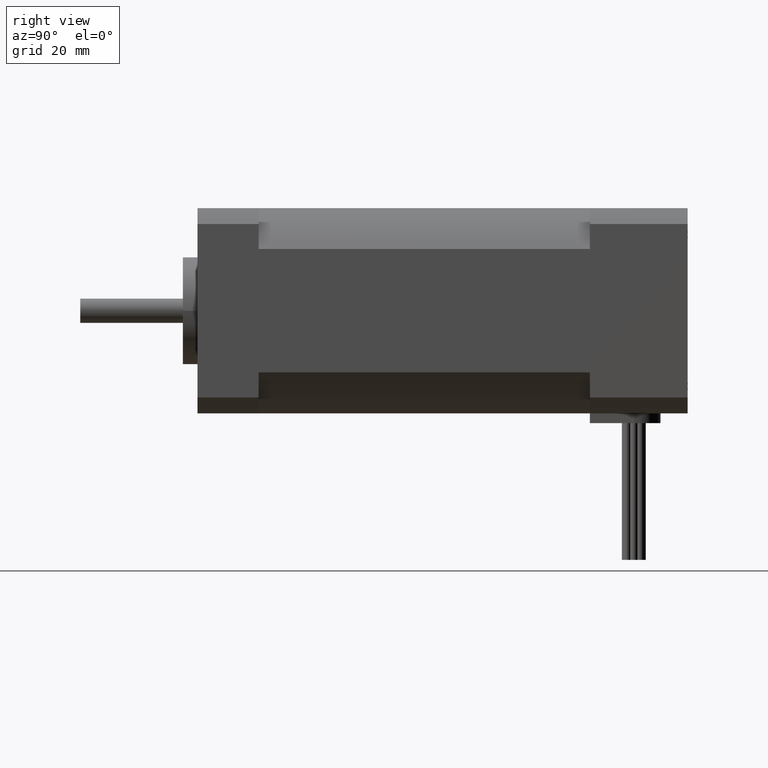
[diagram: clean part render]
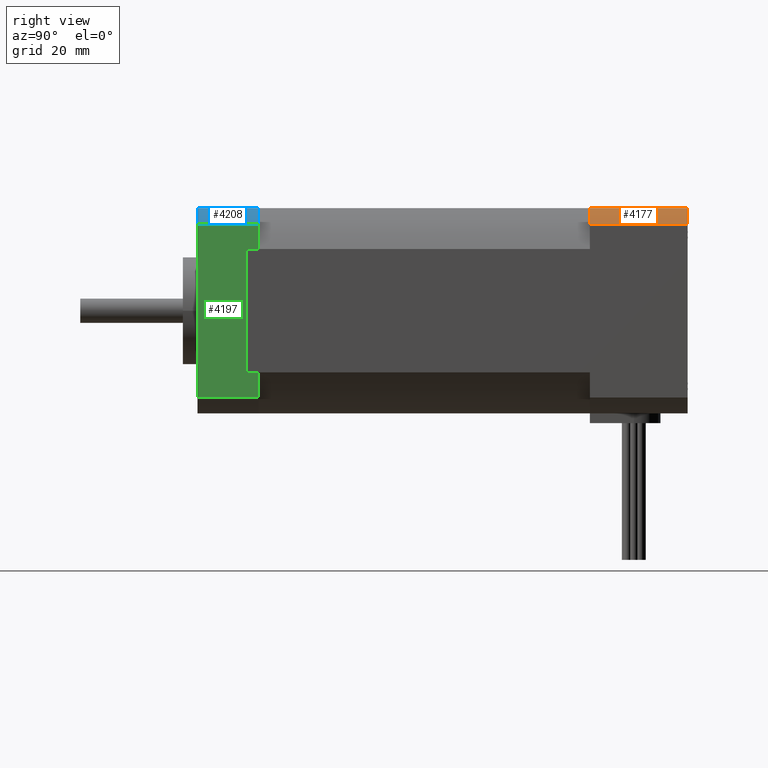
[diagram: same view with three faces highlighted in distinct colors, each labeled with its STEP entity id]
A machine part, right view with three faces highlighted in distinct colors.
Their STEP definitions:

[orange] entity #4177 — the highlighted cylindrical surface (partial cylindrical patch) has radius 27.5 mm, axis along (0, 1, -0).
#389=LINE('',#6434,#611);
#390=LINE('',#6438,#612);
#611=VECTOR('',#5190,2.);
#612=VECTOR('',#5195,2.);
#911=FACE_OUTER_BOUND('',#1199,.T.);
#1199=EDGE_LOOP('',(#2873,#2874,#2875,#2876));
#1516=CIRCLE('',#4498,2.75);
#1521=CIRCLE('',#4508,2.75);
#1789=VERTEX_POINT('',#6413);
#1790=VERTEX_POINT('',#6415);
#1794=VERTEX_POINT('',#6432);
#1795=VERTEX_POINT('',#6436);
#2214=EDGE_CURVE('',#1790,#1789,#1516,.T.);
#2224=EDGE_CURVE('',#1789,#1794,#389,.T.);
#2225=EDGE_CURVE('',#1795,#1794,#1521,.T.);
#2226=EDGE_CURVE('',#1790,#1795,#390,.T.);
#2873=ORIENTED_EDGE('',*,*,#2214,.T.);
#2874=ORIENTED_EDGE('',*,*,#2224,.T.);
#2875=ORIENTED_EDGE('',*,*,#2225,.F.);
#2876=ORIENTED_EDGE('',*,*,#2226,.F.);
#3819=CYLINDRICAL_SURFACE('',#4507,2.75);
#4177=ADVANCED_FACE('',(#911),#3819,.T.);
#4498=AXIS2_PLACEMENT_3D('',#6416,#5167,#5168);
#4507=AXIS2_PLACEMENT_3D('',#6435,#5191,#5192);
#4508=AXIS2_PLACEMENT_3D('',#6437,#5193,#5194);
#5167=DIRECTION('center_axis',(1.45477499778469E-16,1.,-1.24501532695106E-16));
#5168=DIRECTION('ref_axis',(0.645646578347808,1.14684773588243E-18,0.763636363636364));
#5190=DIRECTION('',(1.45477499778469E-16,1.,-1.24501532695106E-16));
#5191=DIRECTION('center_axis',(1.45477499778469E-16,1.,-1.24501532695106E-16));
#5192=DIRECTION('ref_axis',(0.645646578347808,1.14684773588243E-18,0.763636363636364));
#5193=DIRECTION('center_axis',(1.45477499778469E-16,1.,-1.24501532695106E-16));
#5194=DIRECTION('ref_axis',(0.645646578347808,1.14684773588243E-18,0.763636363636364));
#5195=DIRECTION('',(1.45477499778469E-16,1.,-1.24501532695106E-16));
#6413=CARTESIAN_POINT('',(1.68474004670102,5.69264350961966,3.22333088273605));
#6415=CARTESIAN_POINT('',(1.36026813715749,5.69264350961966,3.54780279227958));
#6416=CARTESIAN_POINT('Origin',(-0.415259953298976,5.69264350961966,1.44780279227959));
#6432=CARTESIAN_POINT('',(1.68474004670102,7.69264350961966,3.22333088273605));
#6434=CARTESIAN_POINT('',(1.68474004670102,5.69264350961966,3.22333088273605));
#6435=CARTESIAN_POINT('Origin',(-0.415259953298976,5.69264350961966,1.44780279227959));
#6436=CARTESIAN_POINT('',(1.36026813715749,7.69264350961966,3.54780279227958));
#6437=CARTESIAN_POINT('Origin',(-0.415259953298976,7.69264350961966,1.44780279227958));
#6438=CARTESIAN_POINT('',(1.36026813715749,5.69264350961966,3.54780279227958));

[blue] entity #4208 — the highlighted cylindrical surface (partial cylindrical patch) has radius 27.5 mm, axis along (0, 1, -0).
#410=LINE('',#6532,#632);
#422=LINE('',#6577,#644);
#632=VECTOR('',#5295,1.25);
#644=VECTOR('',#5349,1.25);
#942=FACE_OUTER_BOUND('',#1245,.T.);
#1245=EDGE_LOOP('',(#2997,#2998,#2999,#3000));
#1542=CIRCLE('',#4550,2.75);
#1551=CIRCLE('',#4569,2.75);
#1828=VERTEX_POINT('',#6529);
#1829=VERTEX_POINT('',#6531);
#1832=VERTEX_POINT('',#6539);
#1841=VERTEX_POINT('',#6575);
#2266=EDGE_CURVE('',#1829,#1828,#410,.T.);
#2271=EDGE_CURVE('',#1832,#1828,#1542,.T.);
#2287=EDGE_CURVE('',#1841,#1829,#1551,.T.);
#2288=EDGE_CURVE('',#1841,#1832,#422,.T.);
#2997=ORIENTED_EDGE('',*,*,#2287,.T.);
#2998=ORIENTED_EDGE('',*,*,#2266,.T.);
#2999=ORIENTED_EDGE('',*,*,#2271,.F.);
#3000=ORIENTED_EDGE('',*,*,#2288,.F.);
#3834=CYLINDRICAL_SURFACE('',#4568,2.75);
#4208=ADVANCED_FACE('',(#942),#3834,.T.);
#4550=AXIS2_PLACEMENT_3D('',#6541,#5302,#5303);
#4568=AXIS2_PLACEMENT_3D('',#6574,#5345,#5346);
#4569=AXIS2_PLACEMENT_3D('',#6576,#5347,#5348);
#5295=DIRECTION('',(1.45477499778469E-16,1.,-1.24501532695106E-16));
#5302=DIRECTION('center_axis',(1.45477499778469E-16,1.,-1.24501532695106E-16));
#5303=DIRECTION('ref_axis',(0.645646578347808,1.14684773588236E-18,0.763636363636364));
#5345=DIRECTION('center_axis',(1.45477499778469E-16,1.,-1.24501532695106E-16));
#5346=DIRECTION('ref_axis',(0.645646578347808,1.14684773588236E-18,0.763636363636364));
#5347=DIRECTION('center_axis',(1.45477499778469E-16,1.,-1.24501532695106E-16));
#5348=DIRECTION('ref_axis',(0.645646578347808,1.14684773588236E-18,0.763636363636364));
#5349=DIRECTION('',(1.45477499778469E-16,1.,-1.24501532695106E-16));
#6529=CARTESIAN_POINT('',(1.68474004670102,-1.08735649038034,3.22333088273606));
#6531=CARTESIAN_POINT('',(1.68474004670102,-2.33735649038034,3.22333088273606));
#6532=CARTESIAN_POINT('',(1.68474004670102,-2.33735649038034,3.22333088273606));
#6539=CARTESIAN_POINT('',(1.36026813715749,-1.08735649038034,3.54780279227959));
#6541=CARTESIAN_POINT('Origin',(-0.415259953298977,-1.08735649038034,1.44780279227959));
#6574=CARTESIAN_POINT('Origin',(-0.415259953298977,-2.33735649038034,1.44780279227959));
#6575=CARTESIAN_POINT('',(1.36026813715749,-2.33735649038034,3.54780279227959));
#6576=CARTESIAN_POINT('Origin',(-0.415259953298977,-2.33735649038034,1.44780279227959));
#6577=CARTESIAN_POINT('',(1.36026813715749,-2.33735649038034,3.54780279227959));

[green] entity #4197 — the highlighted planar face has unit normal (1, -0, 0).
#229=PLANE('',#4548);
#392=LINE('',#6478,#614);
#395=LINE('',#6491,#617);
#401=LINE('',#6509,#623);
#409=LINE('',#6530,#631);
#410=LINE('',#6532,#632);
#411=LINE('',#6534,#633);
#412=LINE('',#6536,#634);
#413=LINE('',#6537,#635);
#614=VECTOR('',#5247,0.25);
#617=VECTOR('',#5258,0.25);
#623=VECTOR('',#5276,2.52388589282479);
#631=VECTOR('',#5294,0.513585144044074);
#632=VECTOR('',#5295,1.25);
#633=VECTOR('',#5296,3.55105618091294);
#634=VECTOR('',#5297,1.25);
#635=VECTOR('',#5298,0.513585144044074);
#931=FACE_OUTER_BOUND('',#1231,.T.);
#1231=EDGE_LOOP('',(#2951,#2952,#2953,#2954,#2955,#2956,#2957,#2958));
#1807=VERTEX_POINT('',#6476);
#1808=VERTEX_POINT('',#6477);
#1813=VERTEX_POINT('',#6488);
#1814=VERTEX_POINT('',#6490);
#1828=VERTEX_POINT('',#6529);
#1829=VERTEX_POINT('',#6531);
#1830=VERTEX_POINT('',#6533);
#1831=VERTEX_POINT('',#6535);
#2239=EDGE_CURVE('',#1807,#1808,#392,.T.);
#2245=EDGE_CURVE('',#1814,#1813,#395,.T.);
#2255=EDGE_CURVE('',#1813,#1807,#401,.T.);
#2265=EDGE_CURVE('',#1828,#1808,#409,.T.);
#2266=EDGE_CURVE('',#1829,#1828,#410,.T.);
#2267=EDGE_CURVE('',#1829,#1830,#411,.T.);
#2268=EDGE_CURVE('',#1830,#1831,#412,.T.);
#2269=EDGE_CURVE('',#1814,#1831,#413,.T.);
#2951=ORIENTED_EDGE('',*,*,#2245,.T.);
#2952=ORIENTED_EDGE('',*,*,#2255,.T.);
#2953=ORIENTED_EDGE('',*,*,#2239,.T.);
#2954=ORIENTED_EDGE('',*,*,#2265,.F.);
#2955=ORIENTED_EDGE('',*,*,#2266,.F.);
#2956=ORIENTED_EDGE('',*,*,#2267,.T.);
#2957=ORIENTED_EDGE('',*,*,#2268,.T.);
#2958=ORIENTED_EDGE('',*,*,#2269,.F.);
#4197=ADVANCED_FACE('',(#931),#229,.T.);
#4548=AXIS2_PLACEMENT_3D('',#6528,#5292,#5293);
#5247=DIRECTION('',(1.45477499778469E-16,1.,-1.24501532695106E-16));
#5258=DIRECTION('',(-1.45477499778469E-16,-1.,1.24501532695106E-16));
#5276=DIRECTION('',(1.52523551116391E-33,1.24501532695106E-16,1.));
#5292=DIRECTION('center_axis',(1.,-1.45477499778469E-16,1.65869361839074E-32));
#5293=DIRECTION('ref_axis',(0.,0.,-1.));
#5294=DIRECTION('',(-1.52523551116391E-33,-1.24501532695106E-16,-1.));
#5295=DIRECTION('',(1.45477499778469E-16,1.,-1.24501532695106E-16));
#5296=DIRECTION('',(-1.52523551116391E-33,-1.24501532695106E-16,-1.));
#5297=DIRECTION('',(1.45477499778469E-16,1.,-1.24501532695106E-16));
#5298=DIRECTION('',(-1.52523551116391E-33,-1.24501532695106E-16,-1.));
#6476=CARTESIAN_POINT('',(1.68474004670102,-1.33735649038034,2.70974573869198));
#6477=CARTESIAN_POINT('',(1.68474004670102,-1.08735649038034,2.70974573869198));
#6478=CARTESIAN_POINT('',(1.68474004670102,-1.08735649038034,2.70974573869198));
#6488=CARTESIAN_POINT('',(1.68474004670102,-1.33735649038034,0.185859845867189));
#6490=CARTESIAN_POINT('',(1.68474004670102,-1.08735649038034,0.185859845867189));
#6491=CARTESIAN_POINT('',(1.68474004670102,-1.08735649038034,0.185859845867189));
#6509=CARTESIAN_POINT('',(1.68474004670102,-1.33735649038034,2.33556683750782));
#6528=CARTESIAN_POINT('Origin',(1.68474004670102,-2.33735649038034,3.22333088273606));
#6529=CARTESIAN_POINT('',(1.68474004670102,-1.08735649038034,3.22333088273606));
#6530=CARTESIAN_POINT('',(1.68474004670102,-1.08735649038034,3.22333088273606));
#6531=CARTESIAN_POINT('',(1.68474004670102,-2.33735649038034,3.22333088273606));
#6532=CARTESIAN_POINT('',(1.68474004670102,-2.33735649038034,3.22333088273606));
#6533=CARTESIAN_POINT('',(1.68474004670102,-2.33735649038034,-0.327725298176884));
#6534=CARTESIAN_POINT('',(1.68474004670102,-2.33735649038034,3.22333088273606));
#6535=CARTESIAN_POINT('',(1.68474004670102,-1.08735649038034,-0.327725298176884));
#6536=CARTESIAN_POINT('',(1.68474004670102,-2.33735649038034,-0.327725298176884));
#6537=CARTESIAN_POINT('',(1.68474004670102,-1.08735649038034,3.22333088273606));